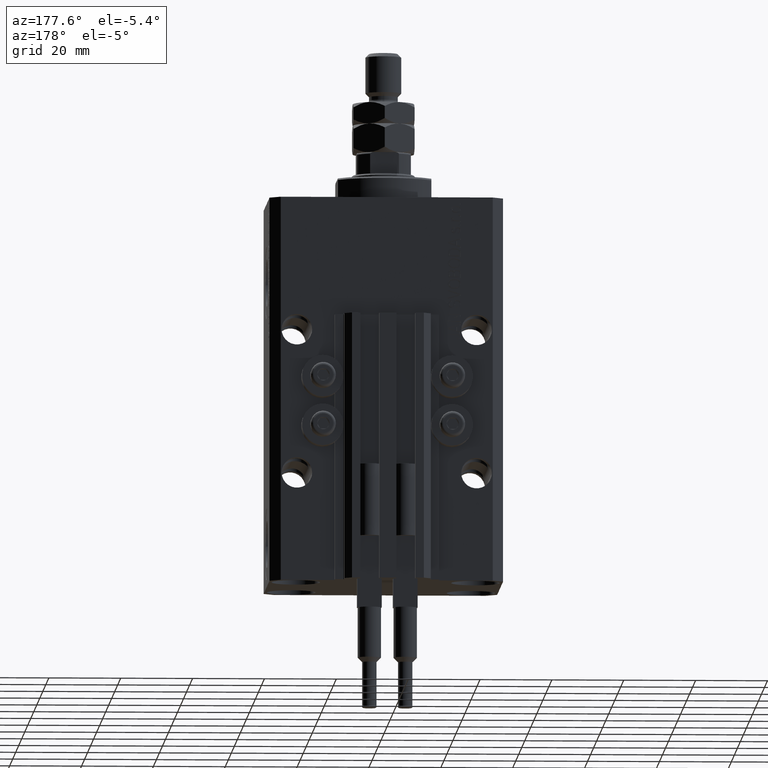
[diagram: clean part render]
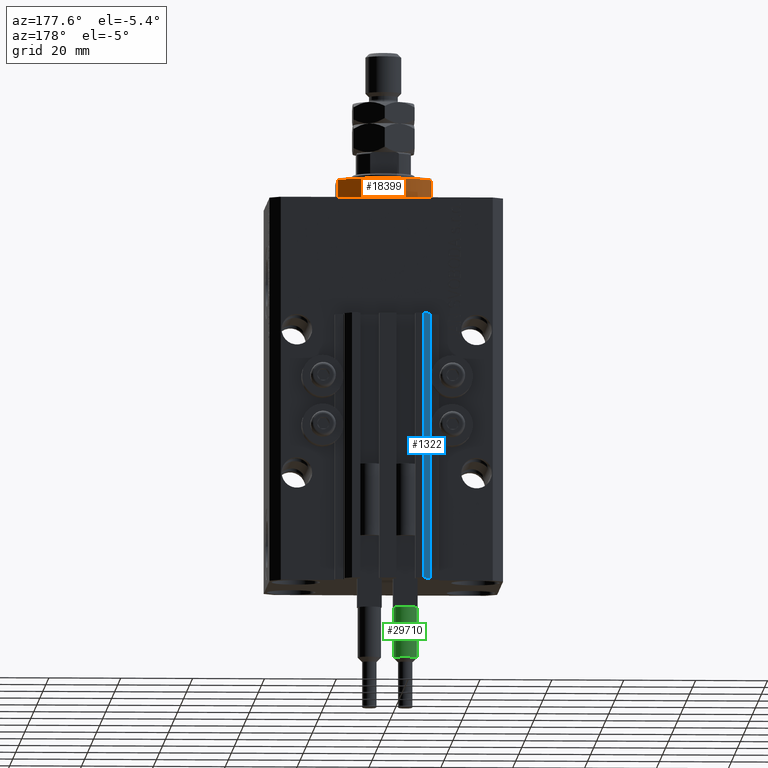
[diagram: same view with three faces highlighted in distinct colors, each labeled with its STEP entity id]
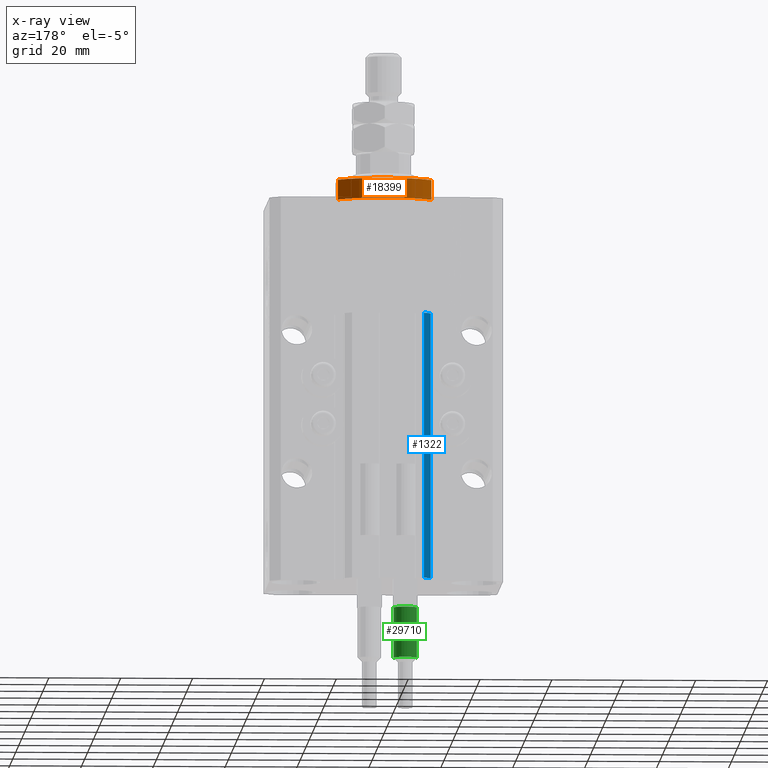
[diagram: x-ray of the same camera — body ghosted, the three highlighted faces saturated]
A machine part, auxiliary view with three faces highlighted in distinct colors.
The next image is the same camera in x-ray (body ghosted, the three faces saturated) — at least one of them is partly hidden behind the body in this view.
Their STEP definitions:

[orange] entity #18399 — the highlighted cylindrical surface (partial cylindrical patch) has radius 16 mm, axis along (0, 0, -1).
#207 = CARTESIAN_POINT ( 'NONE',  ( -13.00000000000000000, 9.327379053088916905, -6.000000000000014211 ) ) ;
#847 = VERTEX_POINT ( 'NONE', #207 ) ;
#4636 = EDGE_LOOP ( 'NONE', ( #38717, #45827, #34032, #40489 ) ) ;
#5527 = DIRECTION ( 'NONE',  ( 1.000000000000000000, 0.000000000000000000, 0.000000000000000000 ) ) ;
#6474 = VECTOR ( 'NONE', #41935, 1000.000000000000000 ) ;
#7377 = DIRECTION ( 'NONE',  ( -0.000000000000000000, -0.000000000000000000, -1.000000000000000000 ) ) ;
#7438 = DIRECTION ( 'NONE',  ( -0.000000000000000000, -0.000000000000000000, 1.000000000000000000 ) ) ;
#7473 = CARTESIAN_POINT ( 'NONE',  ( 13.00000000000000000, 9.327379053088813876, -6.500000000000000000 ) ) ;
#8367 = VERTEX_POINT ( 'NONE', #40385 ) ;
#8521 = EDGE_CURVE ( 'NONE', #48416, #8367, #21995, .T. ) ;
#9369 = CARTESIAN_POINT ( 'NONE',  ( 13.00000000000000000, 9.327379053088916905, -6.000000000000014211 ) ) ;
#9734 = AXIS2_PLACEMENT_3D ( 'NONE', #45174, #49218, #41371 ) ;
#11431 = CARTESIAN_POINT ( 'NONE',  ( 0.000000000000000000, 0.000000000000000000, -0.4999999999999995559 ) ) ;
#12636 = FACE_OUTER_BOUND ( 'NONE', #4636, .T. ) ;
#14989 = DIRECTION ( 'NONE',  ( 1.000000000000000000, -8.881784197001252323E-16, 0.000000000000000000 ) ) ;
#15147 = VERTEX_POINT ( 'NONE', #9369 ) ;
#18399 = ADVANCED_FACE ( 'NONE', ( #12636 ), #32162, .T. ) ;
#21223 = AXIS2_PLACEMENT_3D ( 'NONE', #11431, #7377, #14989 ) ;
#21995 = CIRCLE ( 'NONE', #21223, 16.00000000000000000 ) ;
#24317 = CIRCLE ( 'NONE', #9734, 16.00000000000000000 ) ;
#28113 = CARTESIAN_POINT ( 'NONE',  ( 0.000000000000000000, 0.000000000000000000, -6.500000000000000000 ) ) ;
#29933 = CARTESIAN_POINT ( 'NONE',  ( -13.00000000000000000, 9.327379053088815652, -0.4999999999999995559 ) ) ;
#32162 = CYLINDRICAL_SURFACE ( 'NONE', #41654, 16.00000000000000000 ) ;
#34032 = ORIENTED_EDGE ( 'NONE', *, *, #42727, .T. ) ;
#34329 = CARTESIAN_POINT ( 'NONE',  ( -13.00000000000000000, 9.327379053088813876, -6.500000000000000000 ) ) ;
#34829 = LINE ( 'NONE', #34329, #38894 ) ;
#35929 = EDGE_CURVE ( 'NONE', #15147, #8367, #49797, .T. ) ;
#35973 = EDGE_CURVE ( 'NONE', #15147, #847, #24317, .T. ) ;
#38717 = ORIENTED_EDGE ( 'NONE', *, *, #35929, .F. ) ;
#38894 = VECTOR ( 'NONE', #7438, 1000.000000000000000 ) ;
#40385 = CARTESIAN_POINT ( 'NONE',  ( 13.00000000000000000, 9.327379053088815652, -0.4999999999999995559 ) ) ;
#40489 = ORIENTED_EDGE ( 'NONE', *, *, #8521, .T. ) ;
#41371 = DIRECTION ( 'NONE',  ( -1.000000000000000000, 0.000000000000000000, 0.000000000000000000 ) ) ;
#41654 = AXIS2_PLACEMENT_3D ( 'NONE', #28113, #43042, #5527 ) ;
#41935 = DIRECTION ( 'NONE',  ( -0.000000000000000000, -0.000000000000000000, 1.000000000000000000 ) ) ;
#42727 = EDGE_CURVE ( 'NONE', #847, #48416, #34829, .T. ) ;
#43042 = DIRECTION ( 'NONE',  ( -0.000000000000000000, -0.000000000000000000, 1.000000000000000000 ) ) ;
#45174 = CARTESIAN_POINT ( 'NONE',  ( 0.000000000000000000, 0.000000000000000000, -6.000000000000023981 ) ) ;
#45827 = ORIENTED_EDGE ( 'NONE', *, *, #35973, .T. ) ;
#48416 = VERTEX_POINT ( 'NONE', #29933 ) ;
#49218 = DIRECTION ( 'NONE',  ( 0.000000000000000000, 0.000000000000000000, 1.000000000000000000 ) ) ;
#49797 = LINE ( 'NONE', #7473, #6474 ) ;

[blue] entity #1322 — the highlighted planar face has unit normal (-0.7071, 0.7071, 0).
#1322 = ADVANCED_FACE ( 'NONE', ( #19931 ), #35393, .T. ) ;
#1820 = CARTESIAN_POINT ( 'NONE',  ( -10.00000000000000000, 30.49999999999948841, -33.00000000000000000 ) ) ;
#2402 = CARTESIAN_POINT ( 'NONE',  ( -10.00000000000000000, 30.49999999999948841, -107.0000000000000000 ) ) ;
#2768 = CARTESIAN_POINT ( 'NONE',  ( -10.00000000000000000, 30.49999999999948841, -107.0000000000000000 ) ) ;
#3396 = CARTESIAN_POINT ( 'NONE',  ( -12.00000000000000000, 28.49999999999948841, -107.0000000000000000 ) ) ;
#3403 = VECTOR ( 'NONE', #19721, 999.9999999999998863 ) ;
#5994 = EDGE_CURVE ( 'NONE', #50002, #17360, #7806, .T. ) ;
#6862 = CARTESIAN_POINT ( 'NONE',  ( -12.00000000000000000, 28.49999999999948841, -33.00000000000000000 ) ) ;
#7049 = CARTESIAN_POINT ( 'NONE',  ( -12.00000000000000000, 28.49999999999948841, -107.0000000000000000 ) ) ;
#7806 = LINE ( 'NONE', #45582, #47840 ) ;
#15201 = EDGE_CURVE ( 'NONE', #29553, #50002, #37738, .T. ) ;
#16078 = EDGE_CURVE ( 'NONE', #22830, #17360, #26331, .T. ) ;
#17106 = VECTOR ( 'NONE', #22519, 1000.000000000000000 ) ;
#17360 = VERTEX_POINT ( 'NONE', #6862 ) ;
#19005 = VECTOR ( 'NONE', #33451, 1000.000000000000000 ) ;
#19721 = DIRECTION ( 'NONE',  ( -0.7071067811865472397, -0.7071067811865479058, 0.000000000000000000 ) ) ;
#19931 = FACE_OUTER_BOUND ( 'NONE', #45265, .T. ) ;
#21905 = DIRECTION ( 'NONE',  ( -0.7071067811865479058, 0.7071067811865472397, 0.000000000000000000 ) ) ;
#22519 = DIRECTION ( 'NONE',  ( 0.000000000000000000, 0.000000000000000000, 1.000000000000000000 ) ) ;
#22537 = AXIS2_PLACEMENT_3D ( 'NONE', #2402, #21905, #33081 ) ;
#22830 = VERTEX_POINT ( 'NONE', #3396 ) ;
#23005 = CARTESIAN_POINT ( 'NONE',  ( -10.00000000000000000, 30.49999999999948841, -107.0000000000000000 ) ) ;
#26331 = LINE ( 'NONE', #7049, #17106 ) ;
#27763 = ORIENTED_EDGE ( 'NONE', *, *, #40073, .T. ) ;
#29553 = VERTEX_POINT ( 'NONE', #43907 ) ;
#30636 = ORIENTED_EDGE ( 'NONE', *, *, #16078, .T. ) ;
#33081 = DIRECTION ( 'NONE',  ( -0.7071067811865472397, -0.7071067811865479058, 0.000000000000000000 ) ) ;
#33451 = DIRECTION ( 'NONE',  ( 0.000000000000000000, 0.000000000000000000, 1.000000000000000000 ) ) ;
#34665 = LINE ( 'NONE', #23005, #3403 ) ;
#34680 = ORIENTED_EDGE ( 'NONE', *, *, #15201, .F. ) ;
#35393 = PLANE ( 'NONE',  #22537 ) ;
#37738 = LINE ( 'NONE', #2768, #19005 ) ;
#40073 = EDGE_CURVE ( 'NONE', #29553, #22830, #34665, .T. ) ;
#41043 = ORIENTED_EDGE ( 'NONE', *, *, #5994, .F. ) ;
#43907 = CARTESIAN_POINT ( 'NONE',  ( -10.00000000000000000, 30.49999999999948841, -107.0000000000000000 ) ) ;
#45265 = EDGE_LOOP ( 'NONE', ( #41043, #34680, #27763, #30636 ) ) ;
#45582 = CARTESIAN_POINT ( 'NONE',  ( -10.00000000000000000, 30.49999999999948841, -33.00000000000000000 ) ) ;
#46587 = DIRECTION ( 'NONE',  ( -0.7071067811865472397, -0.7071067811865479058, 0.000000000000000000 ) ) ;
#47840 = VECTOR ( 'NONE', #46587, 999.9999999999998863 ) ;
#50002 = VERTEX_POINT ( 'NONE', #1820 ) ;

[green] entity #29710 — the highlighted cylindrical surface (edge-blend (fillet) strip) has radius 3.25 mm, axis along (0, 0, 1).
#786 = DIRECTION ( 'NONE',  ( 0.000000000000000000, 0.000000000000000000, 1.000000000000000000 ) ) ;
#1383 = CARTESIAN_POINT ( 'NONE',  ( -3.250000000000000444, 0.000000000000000000, 40.00000000000000000 ) ) ;
#2575 = CARTESIAN_POINT ( 'NONE',  ( 0.000000000000000000, 0.000000000000000000, 56.00000000000000000 ) ) ;
#3816 = EDGE_CURVE ( 'NONE', #11576, #48344, #35669, .T. ) ;
#4186 = LINE ( 'NONE', #23714, #8667 ) ;
#6362 = CYLINDRICAL_SURFACE ( 'NONE', #20978, 3.250000000000000444 ) ;
#6939 = DIRECTION ( 'NONE',  ( 1.000000000000000000, 0.000000000000000000, 0.000000000000000000 ) ) ;
#7665 = ORIENTED_EDGE ( 'NONE', *, *, #36530, .T. ) ;
#8100 = AXIS2_PLACEMENT_3D ( 'NONE', #23355, #19818, #35279 ) ;
#8391 = ORIENTED_EDGE ( 'NONE', *, *, #12170, .T. ) ;
#8667 = VECTOR ( 'NONE', #31563, 1000.000000000000000 ) ;
#10150 = DIRECTION ( 'NONE',  ( 0.000000000000000000, 0.000000000000000000, 1.000000000000000000 ) ) ;
#10475 = VERTEX_POINT ( 'NONE', #37104 ) ;
#11576 = VERTEX_POINT ( 'NONE', #41581 ) ;
#12170 = EDGE_CURVE ( 'NONE', #30343, #26816, #46188, .T. ) ;
#13243 = AXIS2_PLACEMENT_3D ( 'NONE', #27930, #786, #28173 ) ;
#14445 = EDGE_LOOP ( 'NONE', ( #7665, #8391, #36786, #16398, #42891, #34500 ) ) ;
#16398 = ORIENTED_EDGE ( 'NONE', *, *, #3816, .T. ) ;
#18031 = DIRECTION ( 'NONE',  ( -1.000000000000000000, 0.000000000000000000, 0.000000000000000000 ) ) ;
#18929 = EDGE_CURVE ( 'NONE', #48344, #24735, #22166, .T. ) ;
#19818 = DIRECTION ( 'NONE',  ( 0.000000000000000000, 0.000000000000000000, -1.000000000000000000 ) ) ;
#20978 = AXIS2_PLACEMENT_3D ( 'NONE', #2575, #22076, #18031 ) ;
#21261 = VECTOR ( 'NONE', #26959, 1000.000000000000000 ) ;
#22076 = DIRECTION ( 'NONE',  ( -0.000000000000000000, -0.000000000000000000, -1.000000000000000000 ) ) ;
#22166 = CIRCLE ( 'NONE', #39983, 3.250000000000000444 ) ;
#23355 = CARTESIAN_POINT ( 'NONE',  ( 0.000000000000000000, 0.000000000000000000, 53.99999999999998579 ) ) ;
#23714 = CARTESIAN_POINT ( 'NONE',  ( -3.250000000000000444, 0.000000000000000000, 56.00000000000000000 ) ) ;
#24735 = VERTEX_POINT ( 'NONE', #1383 ) ;
#26219 = EDGE_CURVE ( 'NONE', #10475, #24735, #4186, .T. ) ;
#26816 = VERTEX_POINT ( 'NONE', #49175 ) ;
#26959 = DIRECTION ( 'NONE',  ( -0.000000000000000000, -0.000000000000000000, -1.000000000000000000 ) ) ;
#27930 = CARTESIAN_POINT ( 'NONE',  ( 0.000000000000000000, 0.000000000000000000, 40.00000000000000000 ) ) ;
#28173 = DIRECTION ( 'NONE',  ( 1.000000000000000000, 0.000000000000000000, 0.000000000000000000 ) ) ;
#29710 = ADVANCED_FACE ( 'NONE', ( #41086 ), #6362, .T. ) ;
#30024 = DIRECTION ( 'NONE',  ( 0.000000000000000000, 0.000000000000000000, 1.000000000000000000 ) ) ;
#30343 = VERTEX_POINT ( 'NONE', #40330 ) ;
#30579 = CIRCLE ( 'NONE', #32236, 3.250000000000000444 ) ;
#31274 = EDGE_CURVE ( 'NONE', #26816, #11576, #30579, .T. ) ;
#31519 = CARTESIAN_POINT ( 'NONE',  ( 3.250000000000000444, 3.980102097228898231E-16, 56.00000000000000000 ) ) ;
#31563 = DIRECTION ( 'NONE',  ( -0.000000000000000000, -0.000000000000000000, -1.000000000000000000 ) ) ;
#32236 = AXIS2_PLACEMENT_3D ( 'NONE', #40339, #10150, #36554 ) ;
#32511 = CARTESIAN_POINT ( 'NONE',  ( -2.883140648667699146, 1.500000000000000000, 40.00000000000000000 ) ) ;
#33826 = CARTESIAN_POINT ( 'NONE',  ( 0.000000000000000000, 0.000000000000000000, 40.00000000000000000 ) ) ;
#34500 = ORIENTED_EDGE ( 'NONE', *, *, #26219, .F. ) ;
#35279 = DIRECTION ( 'NONE',  ( 1.000000000000000000, 0.000000000000000000, 0.000000000000000000 ) ) ;
#35669 = CIRCLE ( 'NONE', #13243, 3.250000000000000444 ) ;
#36530 = EDGE_CURVE ( 'NONE', #10475, #30343, #47768, .T. ) ;
#36554 = DIRECTION ( 'NONE',  ( 1.000000000000000000, 0.000000000000000000, 0.000000000000000000 ) ) ;
#36786 = ORIENTED_EDGE ( 'NONE', *, *, #31274, .T. ) ;
#37104 = CARTESIAN_POINT ( 'NONE',  ( -3.250000000000000444, 0.000000000000000000, 53.99999999999998579 ) ) ;
#39983 = AXIS2_PLACEMENT_3D ( 'NONE', #33826, #30024, #6939 ) ;
#40330 = CARTESIAN_POINT ( 'NONE',  ( 3.250000000000000444, 3.980102097228898231E-16, 53.99999999999998579 ) ) ;
#40339 = CARTESIAN_POINT ( 'NONE',  ( 0.000000000000000000, 0.000000000000000000, 40.00000000000000000 ) ) ;
#41086 = FACE_OUTER_BOUND ( 'NONE', #14445, .T. ) ;
#41581 = CARTESIAN_POINT ( 'NONE',  ( 2.883140648667699146, 1.500000000000000000, 40.00000000000000000 ) ) ;
#42891 = ORIENTED_EDGE ( 'NONE', *, *, #18929, .T. ) ;
#46188 = LINE ( 'NONE', #31519, #21261 ) ;
#47768 = CIRCLE ( 'NONE', #8100, 3.250000000000000444 ) ;
#48344 = VERTEX_POINT ( 'NONE', #32511 ) ;
#49175 = CARTESIAN_POINT ( 'NONE',  ( 3.250000000000000444, 3.980102097228898231E-16, 40.00000000000000000 ) ) ;